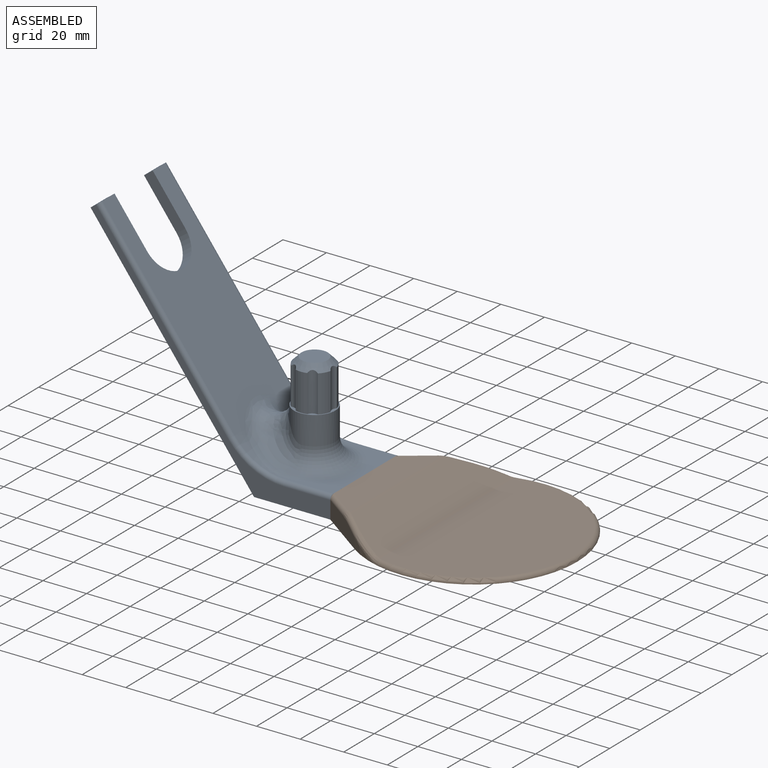
[diagram: assembled view]
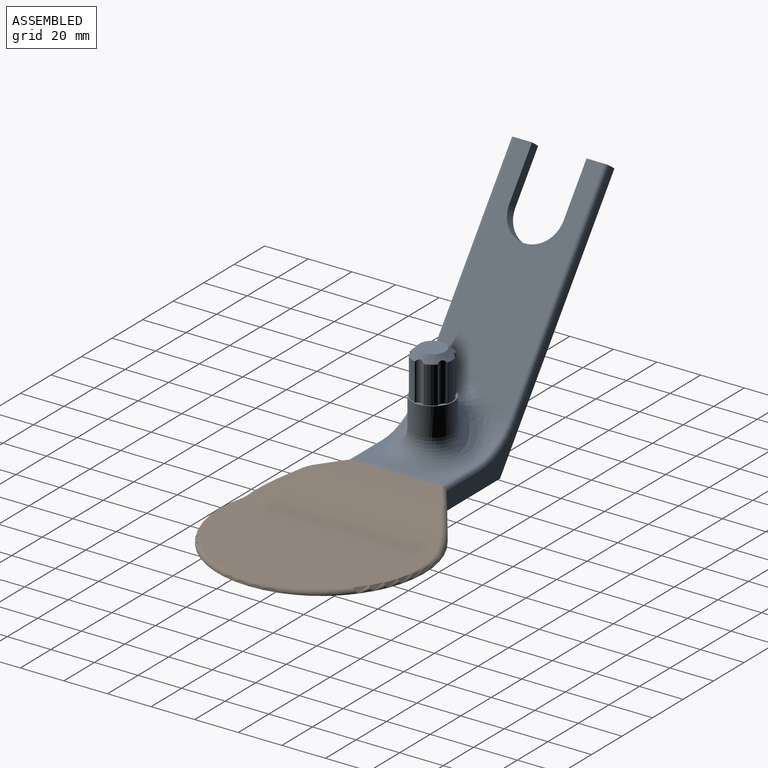
[diagram: assembled view, second angle]
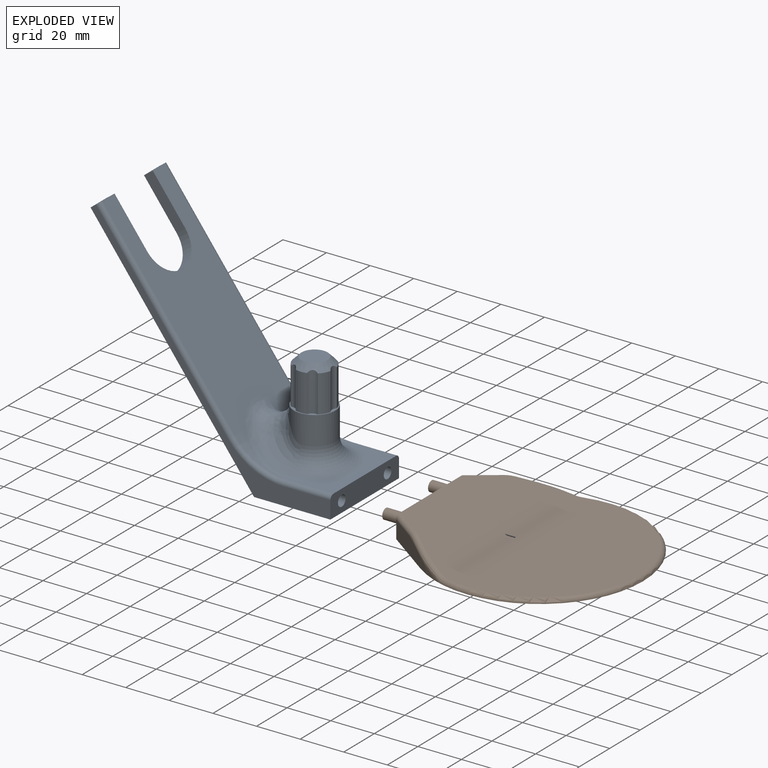
[diagram: exploded view]
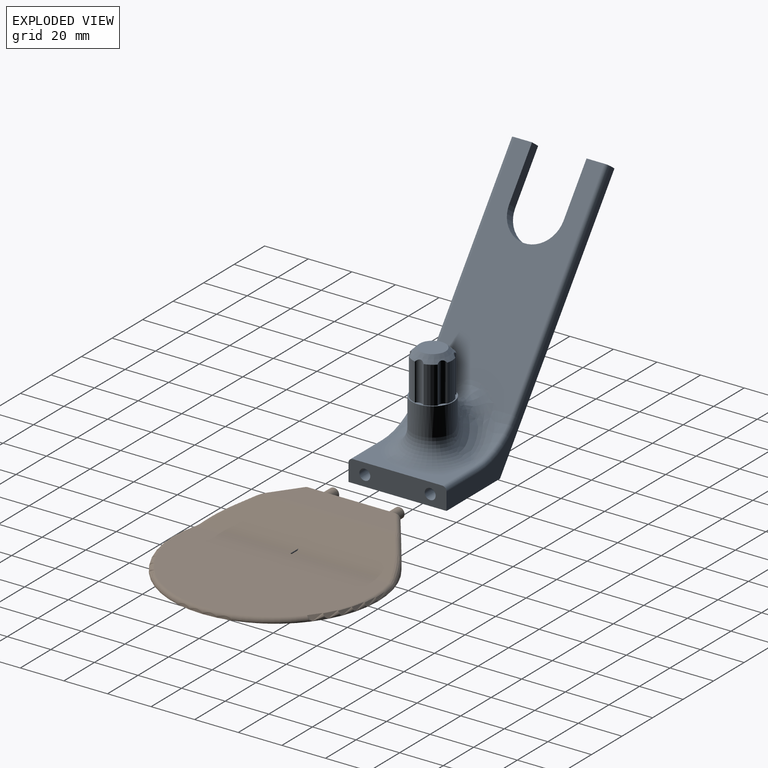
[diagram: exploded view, second angle]
ASSEMBLY  parts=2 mates=3
PART A: 46 faces, bbox 57.5x115.9x103.1 mm
  f0: cylinder r=30mm len=24mm, axis (1,0,0), area 82.6mm2, adj f17,f28,f31,f42
  f1: cylinder r=9.5mm len=19mm, axis (0,0,-1), area 538.2mm2, adj f8,f30,f31,f33,f34,f35
  f2: cylinder r=9mm len=17mm, axis (0,0,-1), area 91.3mm2, adj f8,f10,f15,f16
  f3: cylinder r=9mm len=17mm, axis (0,0,-1), area 91.3mm2, adj f8,f10,f14,f15
  f4: cylinder r=9mm len=17mm, axis (0,0,-1), area 91.3mm2, adj f8,f10,f13,f14
  f5: cylinder r=9mm len=17mm, axis (0,0,-1), area 91.3mm2, adj f8,f10,f12,f13
  f6: cylinder r=9mm len=17mm, axis (0,0,-1), area 91.3mm2, adj f8,f10,f11,f12
  f7: cylinder r=9mm len=17mm, axis (0,0,-1), area 91.3mm2, adj f8,f10,f11,f16
  f8: plane 19.13x19.13mm, normal (0,0,1), area 45.5mm2, adj f1,f2,f3,f4,f5,f6,f7,f11
  f9: plane 12x12mm, normal (0,0,1), area 113.1mm2, adj f10
  f10: cone r=6mm half-angle=45deg, axis (0,0,-1), area 199.9mm2, adj f2,f3,f4,f5,f6,f7,f9,f11
  f11: cylinder r=3mm len=17mm, axis (0,0,1), area 74.9mm2, adj f6,f7,f8,f10
  f12: cylinder r=3mm len=17mm, axis (0,0,1), area 74.9mm2, adj f5,f6,f8,f10
  f13: cylinder r=3mm len=17mm, axis (0,0,1), area 74.9mm2, adj f4,f5,f8,f10
  f14: cylinder r=3mm len=17mm, axis (0,0,1), area 74.9mm2, adj f3,f4,f8,f10
  f15: cylinder r=3mm len=17mm, axis (0,0,1), area 74.9mm2, adj f2,f3,f8,f10
  f16: cylinder r=3mm len=17mm, axis (0,0,1), area 74.9mm2, adj f2,f7,f8,f10
  f17: plane 41x21.25mm, normal (0,0,1), area 342.1mm2, adj f0,f27,f29,f33,f40,f44
  f18: plane 23x19mm, normal (-1,0,0), area 125mm2, adj f19,f21,f24,f28
  f19: cylinder r=12.5mm len=25mm, axis (0,0.8,0.6), area 196.3mm2, adj f18,f20,f24,f28
  f20: plane 23x19mm, normal (1,0,0), area 125mm2, adj f19,f23,f24,f28
  f21: plane 10x4mm, normal (0,-0.6,0.8), area 49.1mm2, adj f18,f24,f25,f28,f41
  f22: plane 45x35mm, normal (0,0,-1), area 1575mm2, adj f24,f25,f26,f27
  f23: plane 10x4mm, normal (0,-0.6,0.8), area 49.1mm2, adj f20,f24,f26,f28,f43
  f24: plane 100x75mm, normal (0,-0.8,-0.6), area 4754.6mm2, adj f18,f19,f20,f21,f22,f23,f25,f26
  f25: plane 110x101.8mm, normal (1,0,0), area 689.6mm2, adj f21,f22,f24,f27,f40,f41,f42
  f26: plane 110x101.8mm, normal (-1,0,0), area 689.6mm2, adj f22,f23,f24,f27,f43,f44,f45
  f27: plane 45x10mm, normal (0,1,0), area 409mm2, adj f17,f22,f25,f26,f36,f38,f40,f44
  f28: plane 81x60.75mm, normal (0,0.8,0.6), area 3123mm2, adj f0,f18,f19,f20,f21,f23,f29,f30
  f29: cylinder r=30mm len=24mm, axis (1,0,0), area 82.6mm2, adj f17,f28,f35,f45
  f30: bspline ~19.06x12.2mm, area 132mm2, adj f1,f28,f31,f32
  f31: bspline ~31x26.68mm, area 365.5mm2, adj f0,f1,f30,f33
  f32: bspline ~23.14x18.73mm, area 166.3mm2, adj f8,f28,f30,f34
  f33: torus R=19.5mm, axis (0,0,-1), area 611mm2, adj f1,f17,f31,f35
  f34: bspline ~19.06x12.2mm, area 132mm2, adj f1,f28,f32,f35
  f35: bspline ~31.11x26.3mm, area 365.5mm2, adj f1,f29,f33,f34
  f36: cylinder r=2.5mm len=15mm, axis (0,1,0), area 235.6mm2, adj f27,f37
  f37: plane 5x5mm, normal (0,1,0), area 19.6mm2, adj f36
  f38: cylinder r=2.5mm len=15mm, axis (0,1,0), area 235.6mm2, adj f27,f39
  f39: plane 5x5mm, normal (0,1,0), area 19.6mm2, adj f38
  f40: cylinder r=2mm len=21.25mm, axis (0,-1,0), area 66.8mm2, adj f17,f25,f27,f42
  f41: cylinder r=2mm len=82.2mm, axis (0,0.6,-0.8), area 318.1mm2, adj f21,f25,f28,f42
  f42: torus R=32mm, axis (1,0,0), area 89.5mm2, adj f0,f25,f40,f41
  f43: cylinder r=2mm len=82.2mm, axis (0,-0.6,0.8), area 318.1mm2, adj f23,f26,f28,f45
  f44: cylinder r=2mm len=21.25mm, axis (0,1,0), area 66.8mm2, adj f17,f26,f27,f45
  f45: torus R=32mm, axis (1,0,0), area 89.5mm2, adj f26,f29,f43,f44
PART B: 30 faces, bbox 111.4x102.8x13.1 mm
  f0: cylinder r=47.5mm len=16.04mm, axis (0,0,-1), area 38.6mm2, adj f1,f7,f24,f25
  f1: plane 22.21x16.02mm, normal (-0.59,-0.81,0), area 201.8mm2, adj f0,f7,f10,f18,f20,f22
  f2: plane 22.21x16.02mm, normal (-0.59,0.81,0), area 201.8mm2, adj f7,f9,f10,f15,f16,f17
  f3: plane 85.66x18.67mm, normal (0.34,0,0.94), area 1503mm2, adj f13,f14,f17,f19,f22,f24
  f4: cylinder r=38mm len=76mm, axis (0,0,1), area 716.3mm2, adj f6,f11
  f5: cylinder r=40mm len=80mm, axis (0,0,1), area 754mm2, adj f6,f7
  f6: plane 80x80mm, normal (0,0,-1), area 490.1mm2, adj f4,f5
  f7: plane 97.5x95mm, normal (0,0,-1), area 2353.4mm2, adj f0,f1,f2,f5,f9,f10,f23
  f8: plane 91x56.76mm, normal (0,0,1), area 4265.8mm2, adj f13,f23
  f9: cylinder r=47.5mm len=16.04mm, axis (0,0,-1), area 38.6mm2, adj f2,f7,f19,f21
  f10: plane 45x10mm, normal (-1,0,0), area 412.4mm2, adj f1,f2,f7,f12,f15,f18,f26,f28
  f11: plane 76x76mm, normal (0,0,-1), area 4536.5mm2, adj f4
  f12: plane 59.17x13.24mm, normal (0,0,1), area 656.8mm2, adj f10,f14,f15,f18
  f13: cylinder r=10mm len=88.17mm, axis (0,-1,0), area 303.4mm2, adj f3,f8,f21,f25
  f14: cylinder r=10mm len=63.11mm, axis (0,1,0), area 213.4mm2, adj f3,f12,f16,f20
  f15: cylinder r=2mm len=14.41mm, axis (-0.81,-0.59,0), area 48.4mm2, adj f2,f10,f12,f16
  f16: bspline ~7x5.59mm, area 12.7mm2, adj f2,f14,f15,f17
  f17: cylinder r=2mm len=9.26mm, axis (-0.78,-0.56,0.28), area 33.8mm2, adj f2,f3,f16,f19
  f18: cylinder r=2mm len=14.41mm, axis (0.81,-0.59,0), area 48.4mm2, adj f1,f10,f12,f20
  f19: bspline ~21.39x11.69mm, area 47.7mm2, adj f3,f9,f17,f21
  f20: bspline ~7x5.59mm, area 12.7mm2, adj f1,f14,f18,f22
  f21: bspline ~7.24x4.01mm, area 13.2mm2, adj f9,f13,f19,f23
  f22: cylinder r=2mm len=9.26mm, axis (0.78,-0.56,-0.28), area 33.8mm2, adj f1,f3,f20,f24
  f23: torus R=45.5mm, axis (0,0,1), area 535.1mm2, adj f7,f8,f21,f25
  f24: bspline ~21.39x11.69mm, area 47.7mm2, adj f0,f3,f22,f25
  f25: bspline ~7.24x4.01mm, area 13.2mm2, adj f0,f13,f23,f24
  f26: cylinder r=2.38mm len=10mm, axis (1,0,0), area 149.2mm2, adj f10,f27
  f27: plane 4.75x4.75mm, normal (-1,0,0), area 17.7mm2, adj f26
  f28: cylinder r=2.38mm len=10mm, axis (1,0,0), area 149.2mm2, adj f10,f29
  f29: plane 4.75x4.75mm, normal (-1,0,0), area 17.7mm2, adj f28
PLACE A rot(axis=(0,0,-1),90deg) t=(-109.31,-3,-34.36)mm
PLACE B t=(-24.31,-3,-34.36)mm
MATE cylindrical B.f28 <-> A.f36  axis (1,0,0) through (-79.31,-18,-29.36)mm
MATE planar A.f27 <-> B.f10  axis (1,0,0) through (-74.31,-3,-29.38)mm
MATE cylindrical B.f26 <-> A.f38  axis (1,0,0) through (-79.31,12,-29.36)mm
